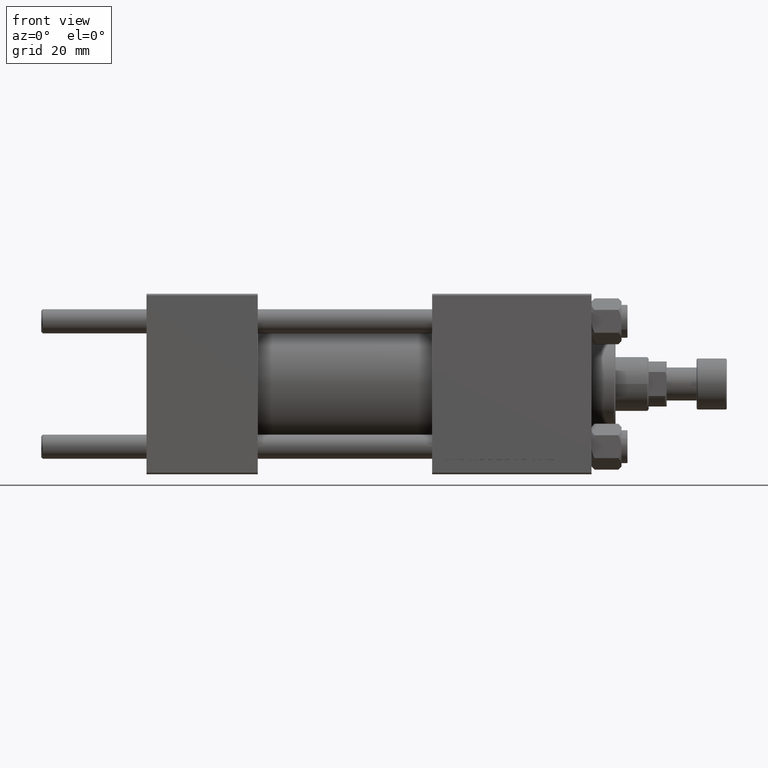
[diagram: clean part render]
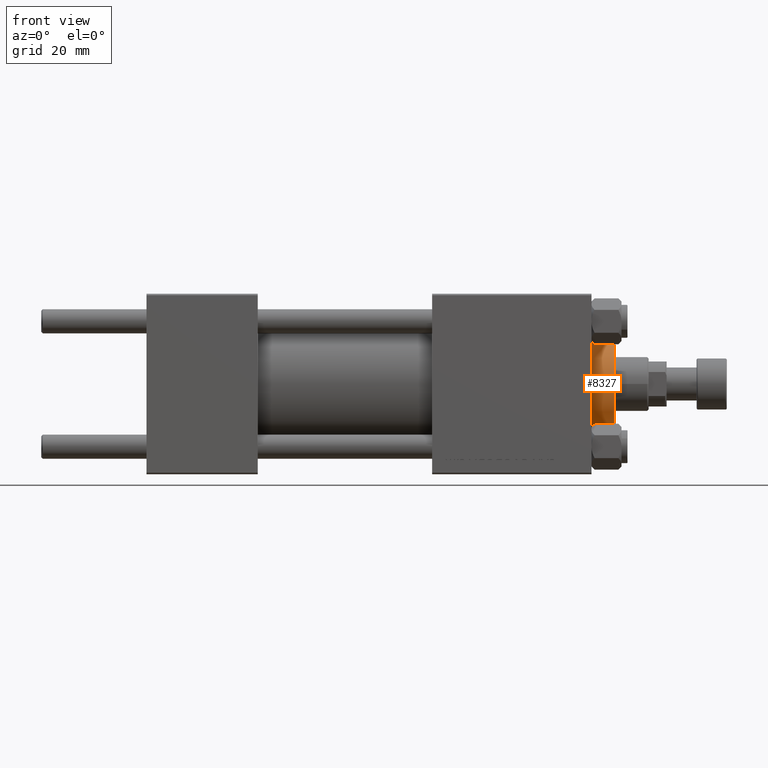
[diagram: same view with one face highlighted and labeled with its STEP entity id]
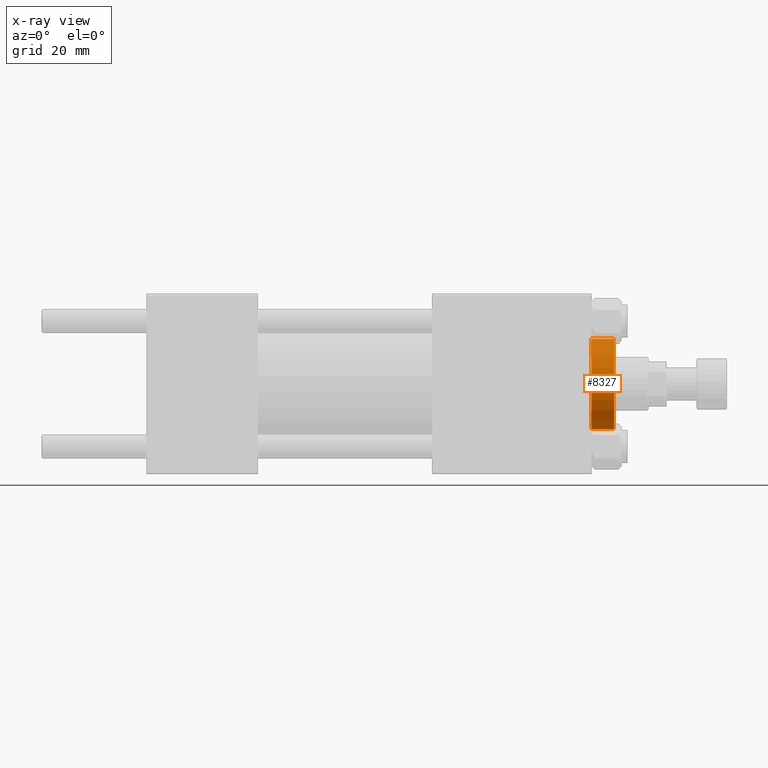
[diagram: x-ray of the same camera — body ghosted, the highlighted face saturated]
A machine part, front view. The second image highlights one B-rep face of the part: STEP entity #8327.
The next image is the same camera in x-ray: the body ghosted, the highlighted face saturated — about 0% of this face is hidden behind the body in this view.
In plain terms, the highlighted cylindrical surface (partial cylindrical patch) has radius 15 mm, axis along (-1, -0, 0).
Its self-contained STEP definition (entity closure, byte-faithful):
#552 = EDGE_CURVE ( 'NONE', #34854, #49866, #15905, .T. ) ;
#1929 = CARTESIAN_POINT ( 'NONE',  ( -15.00000000000000000, 0.000000000000000000, 36.20000000000000284 ) ) ;
#4257 = CARTESIAN_POINT ( 'NONE',  ( 0.000000000000000000, 0.000000000000000000, 36.20000000000000284 ) ) ;
#6829 = CARTESIAN_POINT ( 'NONE',  ( 0.000000000000000000, 0.000000000000000000, 36.69999999999999574 ) ) ;
#8303 = DIRECTION ( 'NONE',  ( 1.000000000000000000, 0.000000000000000000, 0.000000000000000000 ) ) ;
#8327 = ADVANCED_FACE ( 'NONE', ( #22855 ), #41929, .T. ) ;
#8935 = CIRCLE ( 'NONE', #33312, 15.00000000000000000 ) ;
#9925 = CARTESIAN_POINT ( 'NONE',  ( 15.00000000000000000, 1.836970198721029589E-15, 36.20000000000000284 ) ) ;
#11570 = CARTESIAN_POINT ( 'NONE',  ( 0.000000000000000000, 0.000000000000000000, 28.69999999999999929 ) ) ;
#12129 = DIRECTION ( 'NONE',  ( 0.000000000000000000, 0.000000000000000000, -1.000000000000000000 ) ) ;
#15905 = CIRCLE ( 'NONE', #47546, 15.00000000000000000 ) ;
#16367 = EDGE_CURVE ( 'NONE', #31908, #44529, #8935, .T. ) ;
#18154 = CARTESIAN_POINT ( 'NONE',  ( -15.00000000000000000, 0.000000000000000000, 28.69999999999999929 ) ) ;
#18208 = CARTESIAN_POINT ( 'NONE',  ( -15.00000000000000000, 0.000000000000000000, 36.69999999999999574 ) ) ;
#18298 = LINE ( 'NONE', #29987, #22731 ) ;
#20178 = AXIS2_PLACEMENT_3D ( 'NONE', #6829, #37617, #23104 ) ;
#22107 = ORIENTED_EDGE ( 'NONE', *, *, #552, .T. ) ;
#22348 = DIRECTION ( 'NONE',  ( -0.000000000000000000, -0.000000000000000000, -1.000000000000000000 ) ) ;
#22525 = EDGE_CURVE ( 'NONE', #49866, #31908, #33469, .T. ) ;
#22731 = VECTOR ( 'NONE', #22348, 1000.000000000000000 ) ;
#22855 = FACE_OUTER_BOUND ( 'NONE', #44927, .T. ) ;
#23104 = DIRECTION ( 'NONE',  ( -1.000000000000000000, 0.000000000000000000, 0.000000000000000000 ) ) ;
#25460 = ORIENTED_EDGE ( 'NONE', *, *, #16367, .T. ) ;
#26096 = DIRECTION ( 'NONE',  ( -0.000000000000000000, -0.000000000000000000, -1.000000000000000000 ) ) ;
#26153 = DIRECTION ( 'NONE',  ( 1.000000000000000000, 0.000000000000000000, 0.000000000000000000 ) ) ;
#29987 = CARTESIAN_POINT ( 'NONE',  ( 15.00000000000000000, 1.836970198721029589E-15, 36.69999999999999574 ) ) ;
#31908 = VERTEX_POINT ( 'NONE', #18154 ) ;
#32778 = CARTESIAN_POINT ( 'NONE',  ( 15.00000000000000000, 1.836970198721029589E-15, 28.69999999999999929 ) ) ;
#33275 = DIRECTION ( 'NONE',  ( 0.000000000000000000, 0.000000000000000000, 1.000000000000000000 ) ) ;
#33312 = AXIS2_PLACEMENT_3D ( 'NONE', #11570, #33275, #26153 ) ;
#33469 = LINE ( 'NONE', #18208, #35942 ) ;
#34854 = VERTEX_POINT ( 'NONE', #9925 ) ;
#35942 = VECTOR ( 'NONE', #26096, 1000.000000000000000 ) ;
#36597 = ORIENTED_EDGE ( 'NONE', *, *, #22525, .T. ) ;
#36610 = ORIENTED_EDGE ( 'NONE', *, *, #48708, .F. ) ;
#37617 = DIRECTION ( 'NONE',  ( -0.000000000000000000, -0.000000000000000000, -1.000000000000000000 ) ) ;
#41929 = CYLINDRICAL_SURFACE ( 'NONE', #20178, 15.00000000000000000 ) ;
#44529 = VERTEX_POINT ( 'NONE', #32778 ) ;
#44927 = EDGE_LOOP ( 'NONE', ( #36610, #22107, #36597, #25460 ) ) ;
#47546 = AXIS2_PLACEMENT_3D ( 'NONE', #4257, #12129, #8303 ) ;
#48708 = EDGE_CURVE ( 'NONE', #34854, #44529, #18298, .T. ) ;
#49866 = VERTEX_POINT ( 'NONE', #1929 ) ;